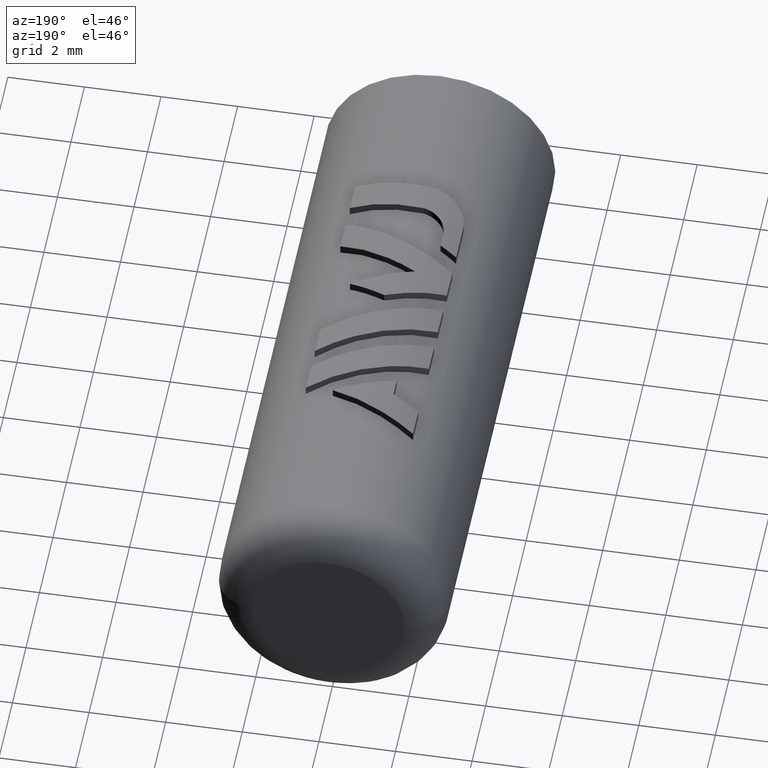
[diagram: clean part render]
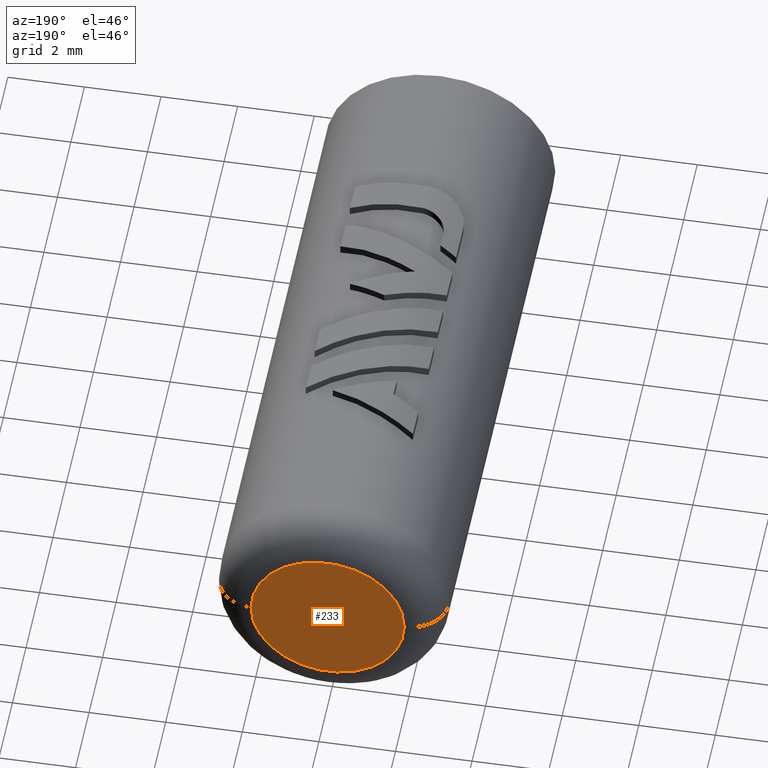
[diagram: same view with one face highlighted and labeled with its STEP entity id]
A machine part, auxiliary view. The second image highlights one B-rep face of the part: STEP entity #233.
In plain terms, the highlighted planar face has unit normal (0, -1, 0).
Its self-contained STEP definition (entity closure, byte-faithful):
#233=ADVANCED_FACE('',(#751),#752,.F.);
#751=FACE_OUTER_BOUND('',#1557,.T.);
#752=PLANE('',#1558);
#1557=EDGE_LOOP('',(#7332,#7333));
#1558=AXIS2_PLACEMENT_3D('',#7334,#7335,#7336);
#7332=ORIENTED_EDGE('',*,*,#9258,.F.);
#7333=ORIENTED_EDGE('',*,*,#9903,.F.);
#7334=CARTESIAN_POINT('',(0.0,16.7,0.0));
#7335=DIRECTION('',(0.0,-1.0,0.0));
#7336=DIRECTION('',(1.0,0.0,-6.12323399573677E-17));
#9258=EDGE_CURVE('',#10955,#10957,#10958,.T.);
#9903=EDGE_CURVE('',#10957,#10955,#12164,.T.);
#10955=VERTEX_POINT('',#13852);
#10957=VERTEX_POINT('',#13854);
#10958=CIRCLE('',#13855,2.0);
#12164=CIRCLE('',#16424,2.0);
#13852=CARTESIAN_POINT('',(2.0,16.7,-1.22464679914735E-16));
#13854=CARTESIAN_POINT('',(-2.0,16.7,3.67394039744206E-16));
#13855=AXIS2_PLACEMENT_3D('',#20363,#20364,#20365);
#16424=AXIS2_PLACEMENT_3D('',#20729,#20730,#20731);
#20363=CARTESIAN_POINT('',(0.0,16.7,0.0));
#20364=DIRECTION('',(0.0,-1.0,0.0));
#20365=DIRECTION('',(1.0,0.0,-6.12323399573677E-17));
#20729=CARTESIAN_POINT('',(0.0,16.7,0.0));
#20730=DIRECTION('',(0.0,-1.0,0.0));
#20731=DIRECTION('',(1.0,0.0,-6.12323399573677E-17));